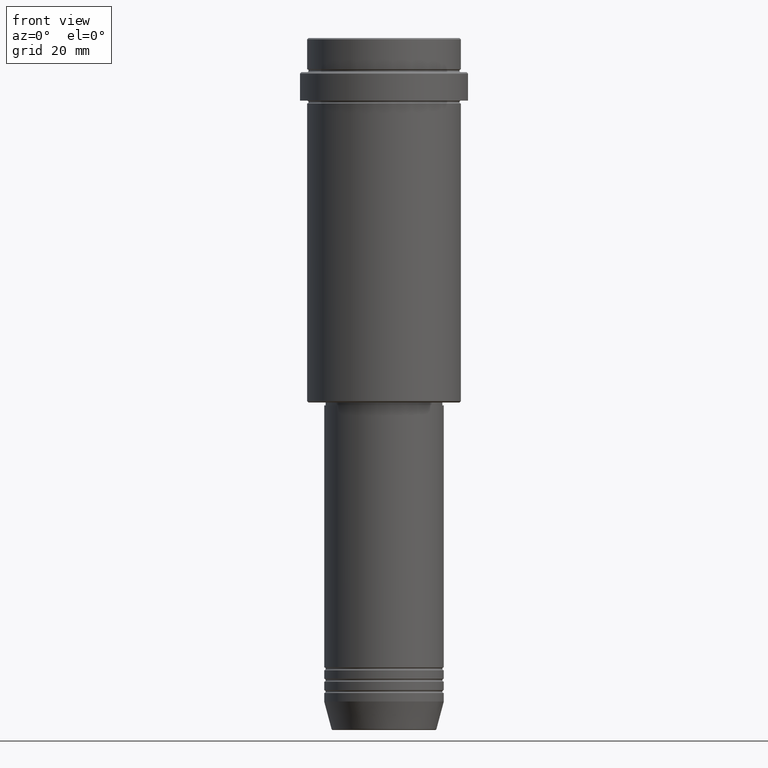
[diagram: clean part render]
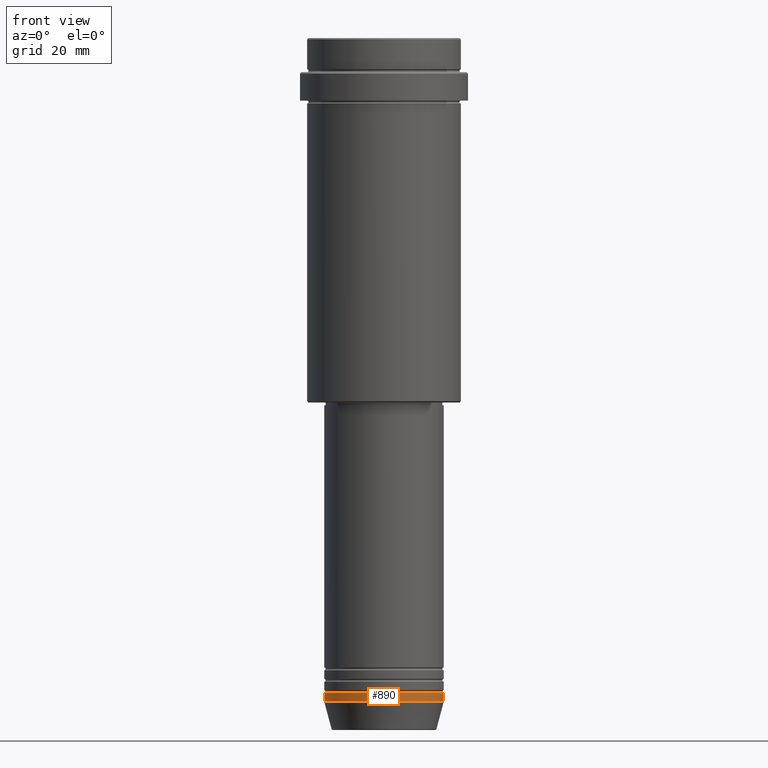
[diagram: same view with one face highlighted and labeled with its STEP entity id]
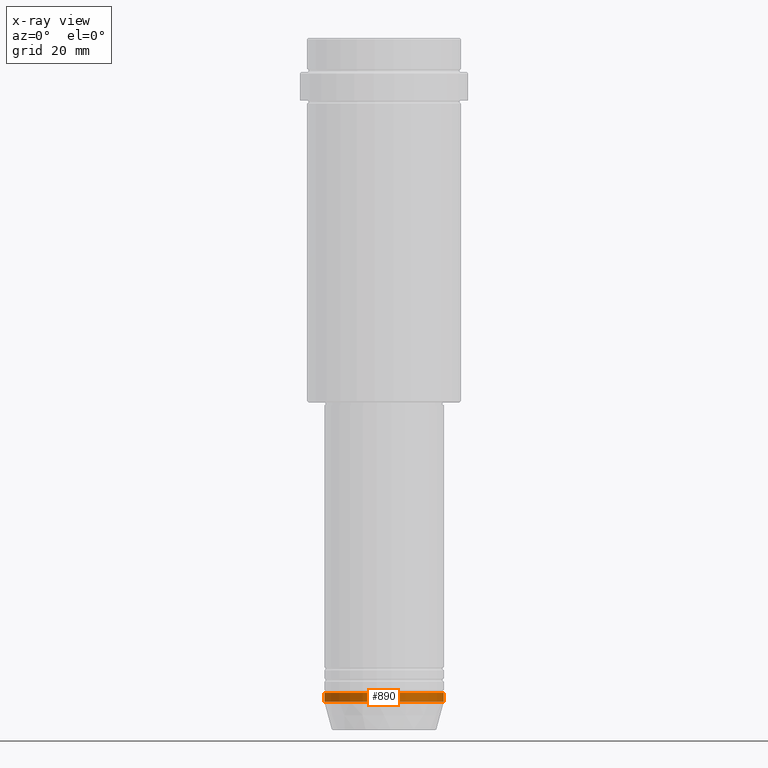
[diagram: x-ray of the same camera — body ghosted, the highlighted face saturated]
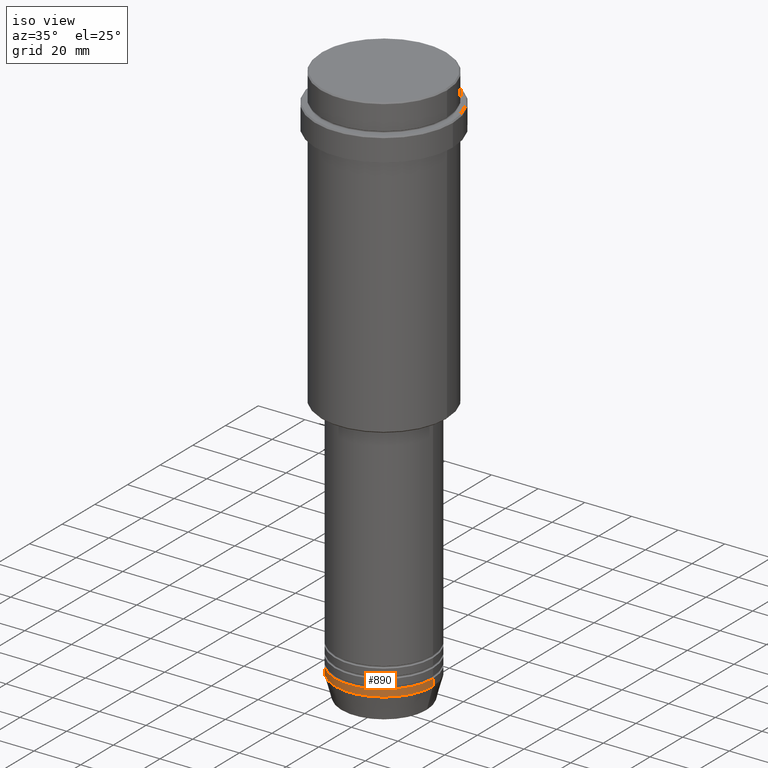
[diagram: same view with one face highlighted and labeled with its STEP entity id]
A machine part, front view. The second image highlights one B-rep face of the part: STEP entity #890.
The next image is the same camera in x-ray: the body ghosted, the highlighted face saturated — about 0% of this face is hidden behind the body in this view.
A second angle (iso view) of the same face is appended — the face is thin or edge-on in the first view.
In plain terms, the highlighted cylindrical surface (partial cylindrical patch) has radius 21 mm, axis along (-0, -0, 1).
Its self-contained STEP definition (entity closure, byte-faithful):
#77 = LINE ( 'NONE', #723, #432 ) ;
#83 = FACE_OUTER_BOUND ( 'NONE', #1026, .T. ) ;
#86 = CIRCLE ( 'NONE', #1159, 21.00000000000000000 ) ;
#96 = CARTESIAN_POINT ( 'NONE',  ( 21.00000000000000000, 0.000000000000000000, -232.9999999999999716 ) ) ;
#142 = ORIENTED_EDGE ( 'NONE', *, *, #1402, .T. ) ;
#220 = DIRECTION ( 'NONE',  ( 1.000000000000000000, 0.000000000000000000, 0.000000000000000000 ) ) ;
#230 = CARTESIAN_POINT ( 'NONE',  ( -21.00000000000000000, 2.571758278209441661E-15, -232.9999999999999716 ) ) ;
#305 = EDGE_CURVE ( 'NONE', #961, #1390, #626, .T. ) ;
#316 = DIRECTION ( 'NONE',  ( -0.000000000000000000, -0.000000000000000000, 1.000000000000000000 ) ) ;
#358 = DIRECTION ( 'NONE',  ( 1.000000000000000000, 0.000000000000000000, 0.000000000000000000 ) ) ;
#405 = VERTEX_POINT ( 'NONE', #1171 ) ;
#432 = VECTOR ( 'NONE', #623, 1000.000000000000000 ) ;
#435 = CARTESIAN_POINT ( 'NONE',  ( -21.00000000000000000, 2.571758278209441661E-15, -229.9999999999999716 ) ) ;
#471 = ORIENTED_EDGE ( 'NONE', *, *, #1094, .F. ) ;
#517 = CYLINDRICAL_SURFACE ( 'NONE', #1222, 21.00000000000000000 ) ;
#537 = DIRECTION ( 'NONE',  ( -0.000000000000000000, -0.000000000000000000, 1.000000000000000000 ) ) ;
#623 = DIRECTION ( 'NONE',  ( -0.000000000000000000, -0.000000000000000000, 1.000000000000000000 ) ) ;
#626 = LINE ( 'NONE', #1246, #775 ) ;
#632 = ORIENTED_EDGE ( 'NONE', *, *, #1281, .T. ) ;
#664 = CARTESIAN_POINT ( 'NONE',  ( 0.000000000000000000, 0.000000000000000000, -232.9999999999999716 ) ) ;
#689 = DIRECTION ( 'NONE',  ( -0.000000000000000000, -0.000000000000000000, 1.000000000000000000 ) ) ;
#723 = CARTESIAN_POINT ( 'NONE',  ( 21.00000000000000000, 0.000000000000000000, 0.000000000000000000 ) ) ;
#725 = DIRECTION ( 'NONE',  ( -0.000000000000000000, -0.000000000000000000, 1.000000000000000000 ) ) ;
#748 = CARTESIAN_POINT ( 'NONE',  ( 0.000000000000000000, 0.000000000000000000, 0.000000000000000000 ) ) ;
#752 = DIRECTION ( 'NONE',  ( 1.000000000000000000, 0.000000000000000000, 0.000000000000000000 ) ) ;
#775 = VECTOR ( 'NONE', #725, 1000.000000000000000 ) ;
#820 = VERTEX_POINT ( 'NONE', #96 ) ;
#846 = AXIS2_PLACEMENT_3D ( 'NONE', #1144, #689, #358 ) ;
#890 = ADVANCED_FACE ( 'NONE', ( #83 ), #517, .T. ) ;
#961 = VERTEX_POINT ( 'NONE', #230 ) ;
#1026 = EDGE_LOOP ( 'NONE', ( #1152, #142, #632, #471 ) ) ;
#1094 = EDGE_CURVE ( 'NONE', #1390, #405, #1110, .T. ) ;
#1110 = CIRCLE ( 'NONE', #846, 21.00000000000000000 ) ;
#1144 = CARTESIAN_POINT ( 'NONE',  ( 0.000000000000000000, 0.000000000000000000, -229.9999999999999716 ) ) ;
#1152 = ORIENTED_EDGE ( 'NONE', *, *, #305, .F. ) ;
#1159 = AXIS2_PLACEMENT_3D ( 'NONE', #664, #537, #220 ) ;
#1171 = CARTESIAN_POINT ( 'NONE',  ( 21.00000000000000000, 0.000000000000000000, -229.9999999999999716 ) ) ;
#1222 = AXIS2_PLACEMENT_3D ( 'NONE', #748, #316, #752 ) ;
#1246 = CARTESIAN_POINT ( 'NONE',  ( -21.00000000000000000, 2.571758278209441661E-15, 0.000000000000000000 ) ) ;
#1281 = EDGE_CURVE ( 'NONE', #820, #405, #77, .T. ) ;
#1390 = VERTEX_POINT ( 'NONE', #435 ) ;
#1402 = EDGE_CURVE ( 'NONE', #961, #820, #86, .T. ) ;